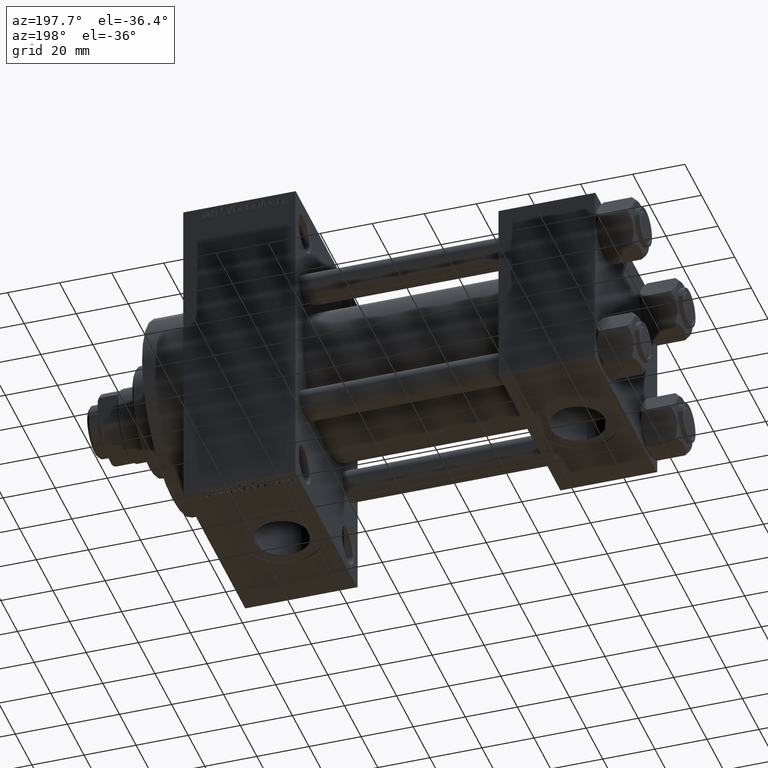
[diagram: clean part render]
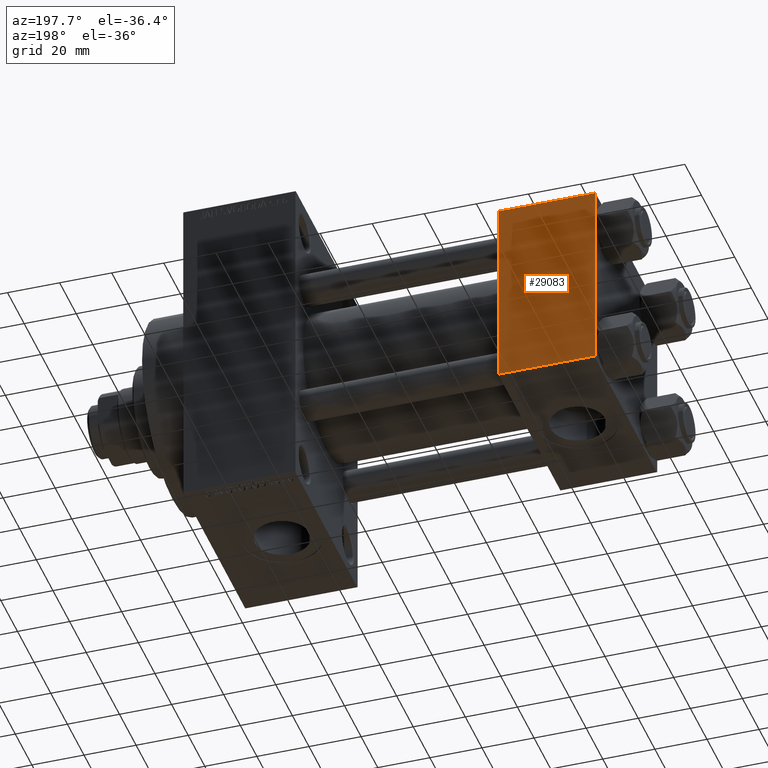
[diagram: same view with one face highlighted and labeled with its STEP entity id]
A machine part, auxiliary view. The second image highlights one B-rep face of the part: STEP entity #29083.
In plain terms, the highlighted planar face has unit normal (0, 1, 0).
Its self-contained STEP definition (entity closure, byte-faithful):
#304 = FACE_OUTER_BOUND ( 'NONE', #15508, .T. ) ;
#4152 = DIRECTION ( 'NONE',  ( -0.000000000000000000, 1.000000000000000000, 0.000000000000000000 ) ) ;
#4276 = LINE ( 'NONE', #43724, #45016 ) ;
#5653 = DIRECTION ( 'NONE',  ( 1.000000000000000000, 0.000000000000000000, 0.000000000000000000 ) ) ;
#6273 = CARTESIAN_POINT ( 'NONE',  ( 37.00000000000000000, 37.49999999999999289, 37.00000000000000000 ) ) ;
#8692 = EDGE_CURVE ( 'NONE', #30642, #23715, #25885, .T. ) ;
#9252 = CARTESIAN_POINT ( 'NONE',  ( 37.00000000000000000, 37.49999999999999289, 37.00000000000000000 ) ) ;
#9400 = AXIS2_PLACEMENT_3D ( 'NONE', #34664, #4152, #47187 ) ;
#11814 = VECTOR ( 'NONE', #5653, 1000.000000000000000 ) ;
#13072 = LINE ( 'NONE', #9252, #11814 ) ;
#14110 = EDGE_CURVE ( 'NONE', #23715, #43453, #4276, .T. ) ;
#15164 = PLANE ( 'NONE',  #9400 ) ;
#15498 = VECTOR ( 'NONE', #49442, 1000.000000000000000 ) ;
#15508 = EDGE_LOOP ( 'NONE', ( #33070, #31810, #47967, #29650 ) ) ;
#21357 = CARTESIAN_POINT ( 'NONE',  ( 0.000000000000000000, 37.49999999999999289, -36.99999999999998579 ) ) ;
#21845 = CARTESIAN_POINT ( 'NONE',  ( 37.00000000000000000, 37.49999999999999289, -36.99999999999998579 ) ) ;
#23715 = VERTEX_POINT ( 'NONE', #21845 ) ;
#25885 = LINE ( 'NONE', #41508, #15498 ) ;
#27435 = EDGE_CURVE ( 'NONE', #49879, #30642, #13072, .T. ) ;
#29083 = ADVANCED_FACE ( 'NONE', ( #304 ), #15164, .T. ) ;
#29650 = ORIENTED_EDGE ( 'NONE', *, *, #27435, .T. ) ;
#30642 = VERTEX_POINT ( 'NONE', #6273 ) ;
#30997 = CARTESIAN_POINT ( 'NONE',  ( 0.000000000000000000, 37.49999999999999289, 37.50000000000000000 ) ) ;
#31810 = ORIENTED_EDGE ( 'NONE', *, *, #14110, .T. ) ;
#33070 = ORIENTED_EDGE ( 'NONE', *, *, #8692, .T. ) ;
#34664 = CARTESIAN_POINT ( 'NONE',  ( 37.00000000000000000, 37.49999999999999289, 37.50000000000000000 ) ) ;
#36915 = CARTESIAN_POINT ( 'NONE',  ( 0.000000000000000000, 37.49999999999999289, 37.00000000000000000 ) ) ;
#37683 = VECTOR ( 'NONE', #46882, 1000.000000000000000 ) ;
#41508 = CARTESIAN_POINT ( 'NONE',  ( 37.00000000000000000, 37.49999999999999289, 37.50000000000000000 ) ) ;
#43453 = VERTEX_POINT ( 'NONE', #21357 ) ;
#43724 = CARTESIAN_POINT ( 'NONE',  ( 37.00000000000000000, 37.49999999999999289, -36.99999999999998579 ) ) ;
#43969 = DIRECTION ( 'NONE',  ( -1.000000000000000000, 0.000000000000000000, 0.000000000000000000 ) ) ;
#45016 = VECTOR ( 'NONE', #43969, 1000.000000000000000 ) ;
#46882 = DIRECTION ( 'NONE',  ( 0.000000000000000000, 0.000000000000000000, -1.000000000000000000 ) ) ;
#47187 = DIRECTION ( 'NONE',  ( 0.000000000000000000, -0.000000000000000000, 1.000000000000000000 ) ) ;
#47967 = ORIENTED_EDGE ( 'NONE', *, *, #49347, .F. ) ;
#49347 = EDGE_CURVE ( 'NONE', #49879, #43453, #50465, .T. ) ;
#49442 = DIRECTION ( 'NONE',  ( 0.000000000000000000, 0.000000000000000000, -1.000000000000000000 ) ) ;
#49879 = VERTEX_POINT ( 'NONE', #36915 ) ;
#50465 = LINE ( 'NONE', #30997, #37683 ) ;